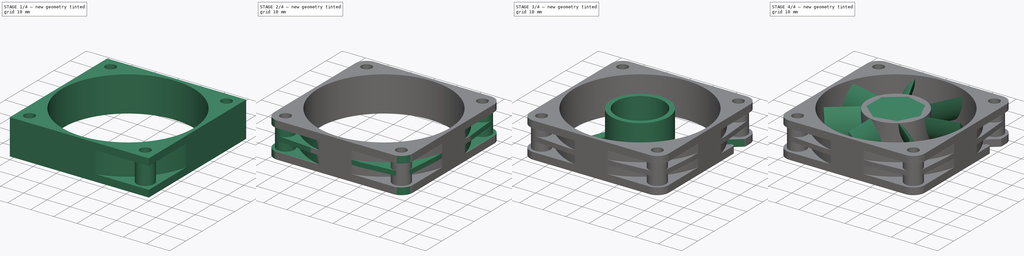
[diagram: build sequence overview — one tinted view per stage of 4, left to right]
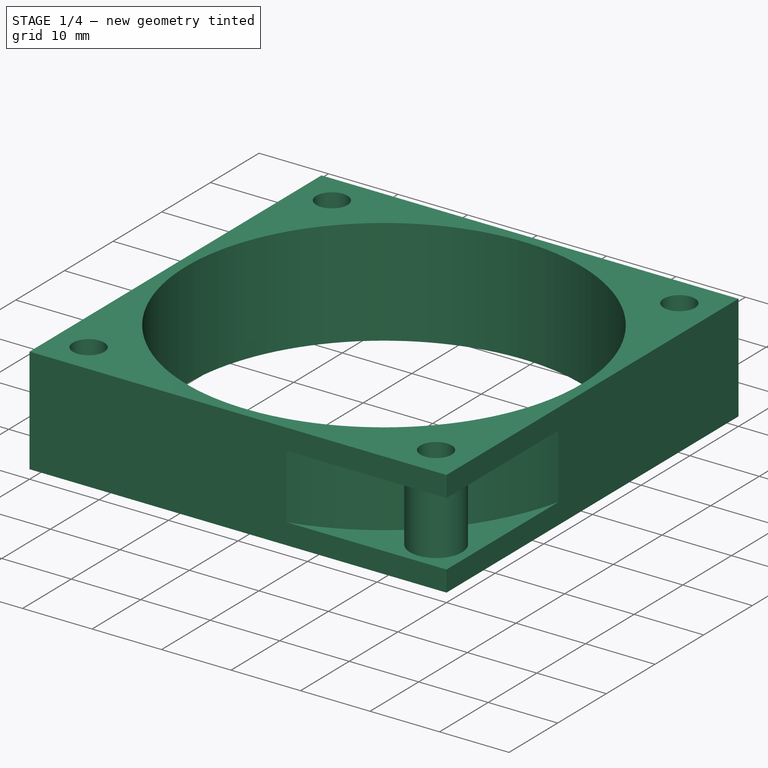
[diagram: stage 1 of 4 — iso view after this stage's code; geometry added in this stage tinted green]
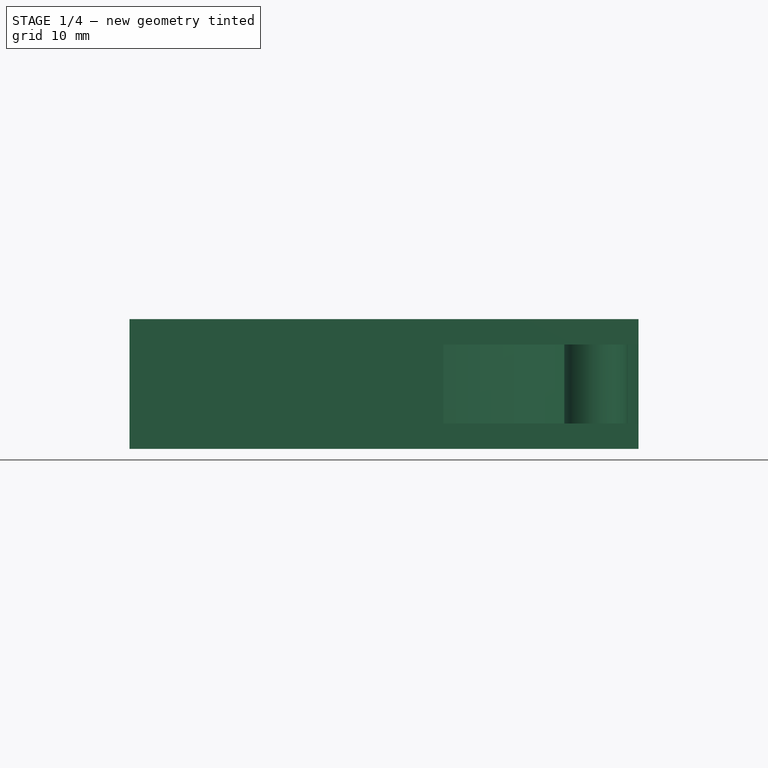
[diagram: stage 1 of 4 — front view after this stage's code; geometry added in this stage tinted green]
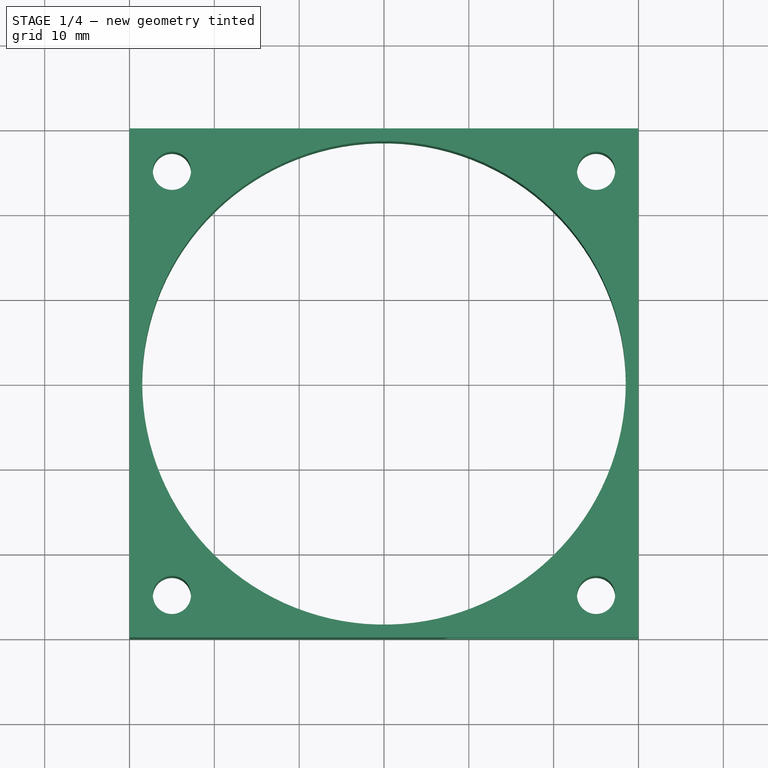
[diagram: stage 1 of 4 — top view after this stage's code; geometry added in this stage tinted green]
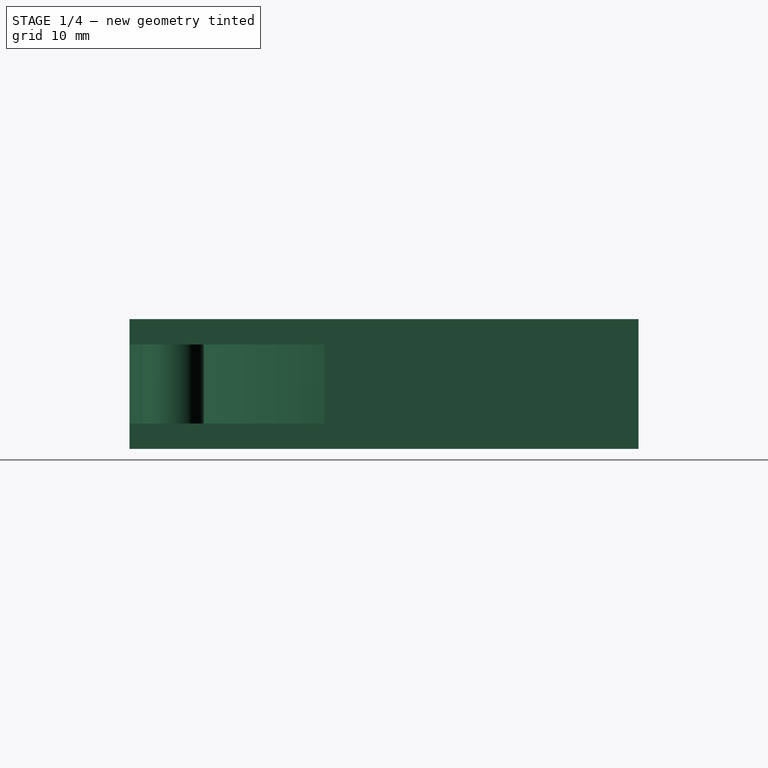
[diagram: stage 1 of 4 — right view after this stage's code; geometry added in this stage tinted green]
FCSTD DOCUMENT  (FreeCAD 1.0R39285 (Git))
Label: CHA6402_Fan
License: All rights reserved
LicenseURL: http://en.wikipedia.org/wiki/All_rights_reserved
objects: Sketcher::SketchObject×9, PartDesign::Pad×7, PartDesign::Plane×4, PartDesign::Pocket×2, PartDesign::Fillet×2, PartDesign::Mirrored×2, PartDesign::Body×2, PartDesign::PolarPattern×1, PartDesign::MultiTransform×1, App::Part×1
note: 65 computed .brp shape members not serialized (recipe doc carries the construction recipe); baked Part::Feature solids carry a one-line shape summary decoded from their .brp

FEATURE [Sketcher::SketchObject] Sketch
  ArcFitTolerance = 1e-06
  AttachmentSupport = -> [XY_Plane]
  FullyConstrained = true
  MakeInternals = true
  MapMode = 5
  sketch-geometry (15):
    g0: LineSegment StartX=-30 StartY=-30 StartZ=0 EndX=30 EndY=-30 EndZ=0
    g1: LineSegment StartX=30 StartY=-30 StartZ=0 EndX=30 EndY=30 EndZ=0
    g2: LineSegment StartX=30 StartY=30 StartZ=0 EndX=-30 EndY=30 EndZ=0
    g3: LineSegment StartX=-30 StartY=30 StartZ=0 EndX=-30 EndY=-30 EndZ=0
    g4: GeomPoint [constr] X=0 Y=0 Z=0
    g5: Circle CenterX=0 CenterY=0 CenterZ=0 NormalX=0 NormalY=0 NormalZ=1 AngleXU=0 Radius=28.5
    g6: Circle CenterX=25 CenterY=25 CenterZ=0 NormalX=0 NormalY=0 NormalZ=1 AngleXU=0 Radius=2.25
    g7: LineSegment [constr] StartX=-25 StartY=-25 StartZ=0 EndX=25 EndY=-25 EndZ=0
    g8: LineSegment [constr] StartX=25 StartY=-25 StartZ=0 EndX=25 EndY=25 EndZ=0
    g9: LineSegment [constr] StartX=25 StartY=25 StartZ=0 EndX=-25 EndY=25 EndZ=0
    g10: LineSegment [constr] StartX=-25 StartY=25 StartZ=0 EndX=-25 EndY=-25 EndZ=0
    g11: GeomPoint [constr] X=0 Y=0 Z=0
    g12: Circle CenterX=25 CenterY=-25 CenterZ=0 NormalX=0 NormalY=0 NormalZ=1 AngleXU=0 Radius=2.25
    g13: Circle CenterX=-25 CenterY=-25 CenterZ=0 NormalX=0 NormalY=0 NormalZ=1 AngleXU=0 Radius=2.25
    g14: Circle CenterX=-25 CenterY=25 CenterZ=0 NormalX=0 NormalY=0 NormalZ=1 AngleXU=0 Radius=2.25
  constraints (38):
    c: Coincident(g0,g1)
    c: Coincident(g1,g2)
    c: Coincident(g2,g3)
    c: Coincident(g3,g0)
    c: Horizontal(g0)
    c: Horizontal(g2)
    c: Vertical(g1)
    c: Vertical(g3)
    c: Symmetric(g2,g0,g4)
    c: Distance(g1,g3) = 60  'fanThickness'
    c: Coincident(g4,g-1)
    c: Equal(g0,g1)
    c: Coincident(g5,g4)
    c: Diameter(g5) = 57  'centerHoleDiam'
    c: Diameter(g6) = 4.5  'mountingHoleDiam'
    c: Coincident(g7,g8)
    c: Coincident(g8,g9)
    c: Coincident(g9,g10)
    c: Coincident(g10,g7)
    c: Horizontal(g7)
    c: Horizontal(g9)
    c: Vertical(g8)
    c: Vertical(g10)
    c: Symmetric(g9,g7,g11)
    c: Distance(g8,g10) = 50
    c: Coincident(g11,g4)
    c: Equal(g7,g8)
    c: Coincident(g6,g8)
    c: Coincident(g12,g7)
    c: Coincident(g13,g7)
    c: Coincident(g14,g9)
    c: Equal(g12,g13)
    c: Equal(g13,g14)
    c: Equal(g14,g6)
    c: DistanceX(g7,g0) = 5  'holeMountXDist'
    c: DistanceY(g0,g7) = 5  'holeMountYDist'
    c: DistanceY(g0,g4) = 30  'centerHoleY'
    c: DistanceX(g4,g0) = 30  'centerHoleX'
FEATURE [PartDesign::Pad] Pad
  Direction = (0,0,1)
  Length = 15.3
  Length2 = 10
  Profile = -> Sketch
  ReferenceAxis = -> Sketch [N_Axis]
  Refine = true
  Suppressed = false
  Type = 0
FEATURE [PartDesign::Plane] DatumPlane
  AttachmentSupport = -> [Pad]
  Length = 66
  MapMode = 45
  Placement = pos=(30,-30,7.65) rot=(0,0,1;0rad)
  ResizeMode = 0
  Width = 66
FEATURE [Sketcher::SketchObject] Sketch001
  ArcFitTolerance = 1e-06
  AttachmentSupport = -> [DatumPlane]
  FullyConstrained = true
  MakeInternals = true
  MapMode = 5
  Placement = pos=(30,-30,7.65) rot=(0,0,1;0rad)
  expr: Constraints[0] = Sketch.Constraints.holeMountYDist
  expr: Constraints[1] = Sketch.Constraints.holeMountXDist
  expr: Constraints[2] = Sketch.Constraints.mountingHoleDiam
  expr: Constraints[4] = Sketch.Constraints.centerHoleY
  expr: Constraints[5] = Sketch.Constraints.centerHoleX
  expr: Constraints[6] = Sketch.Constraints.centerHoleDiam
  sketch-geometry (6):
    g0: Circle CenterX=-5 CenterY=5 CenterZ=0 NormalX=0 NormalY=0 NormalZ=1 AngleXU=0 Radius=2.25
    g1: Circle CenterX=-5 CenterY=5 CenterZ=0 NormalX=0 NormalY=0 NormalZ=1 AngleXU=0 Radius=3.75
    g2: Circle [constr] CenterX=-30 CenterY=30 CenterZ=0 NormalX=0 NormalY=0 NormalZ=1 AngleXU=0 Radius=28.5
    g3: ArcOfCircle CenterX=-30 CenterY=30 CenterZ=0 NormalX=0 NormalY=0 NormalZ=1 AngleXU=0 Radius=30.8058 StartAngle=4.94162 EndAngle=6.05395
    g4: LineSegment StartX=3.6e-15 StartY=23 StartZ=0 EndX=0 EndY=0 EndZ=0
    g5: LineSegment StartX=-23 StartY=0 StartZ=0 EndX=0 EndY=0 EndZ=0
  constraints (16):
    c: DistanceY(g-1,g0) = 5
    c: DistanceX(g0,g-1) = 5
    c: Diameter(g0) = 4.5
    c: Diameter(g1) = 7.5  'holePostDiam'
    c: DistanceY(g-1,g2) = 30
    c: DistanceX(g2,g-1) = 30
    c: Diameter(g2) = 57
    c: PointOnObject(g3,g-1)
    c: PointOnObject(g3,g-2)
    c: Coincident(g3,g2)
    c: Coincident(g4,g3)
    c: Coincident(g4,g-1)
    c: Coincident(g5,g3)
    c: Coincident(g5,g4)
    c: DistanceY(g4,g4) = 23  'pocketCurveDistToPoint'
    c: Coincident(g1,g0)
FEATURE [PartDesign::Pocket] Pocket
  BaseFeature = -> Pad
  Direction = (0,0,-1)
  Length = 9.3
  Length2 = 5
  Midplane = true
  Profile = -> Sketch001 [Edge4,Edge1,Edge5,Edge3]
  ReferenceAxis = -> Sketch001 [N_Axis]
  Refine = true
  Suppressed = false
  Type = 0
  expr: Length = Pad.Length - 3 mm * 2
FEATURE [PartDesign::Pad] Pad001
  BaseFeature = -> Pocket
  Direction = (0,0,1)
  Length = 9.3
  Length2 = 10
  Midplane = true
  Profile = -> Sketch001 [Edge2,Edge1]
  ReferenceAxis = -> Sketch001 [N_Axis]
  Refine = true
  Suppressed = false
  Type = 0
  expr: Length = Pocket.Length
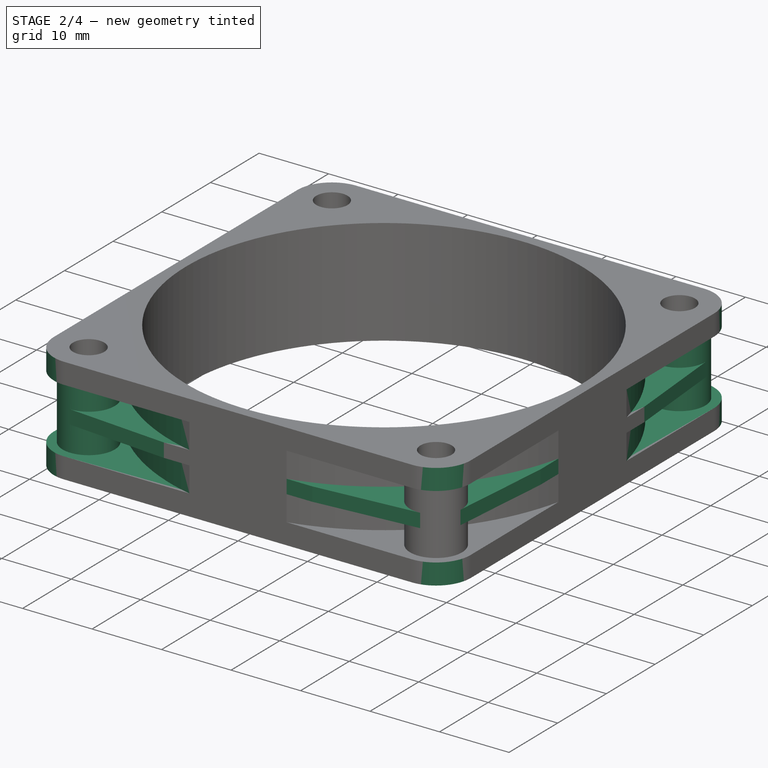
[diagram: stage 2 of 4 — iso view after this stage's code; geometry added in this stage tinted green]
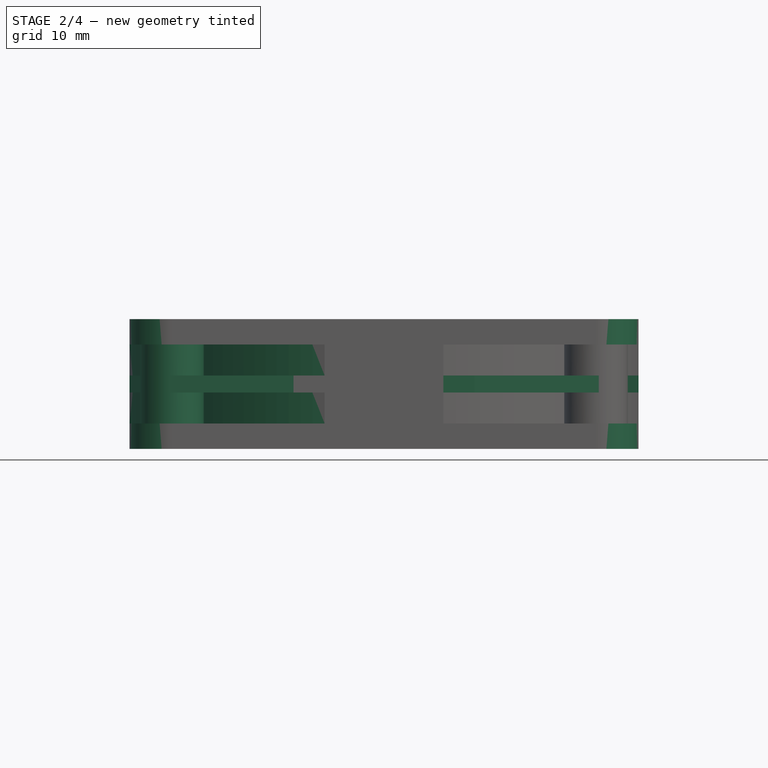
[diagram: stage 2 of 4 — front view after this stage's code; geometry added in this stage tinted green]
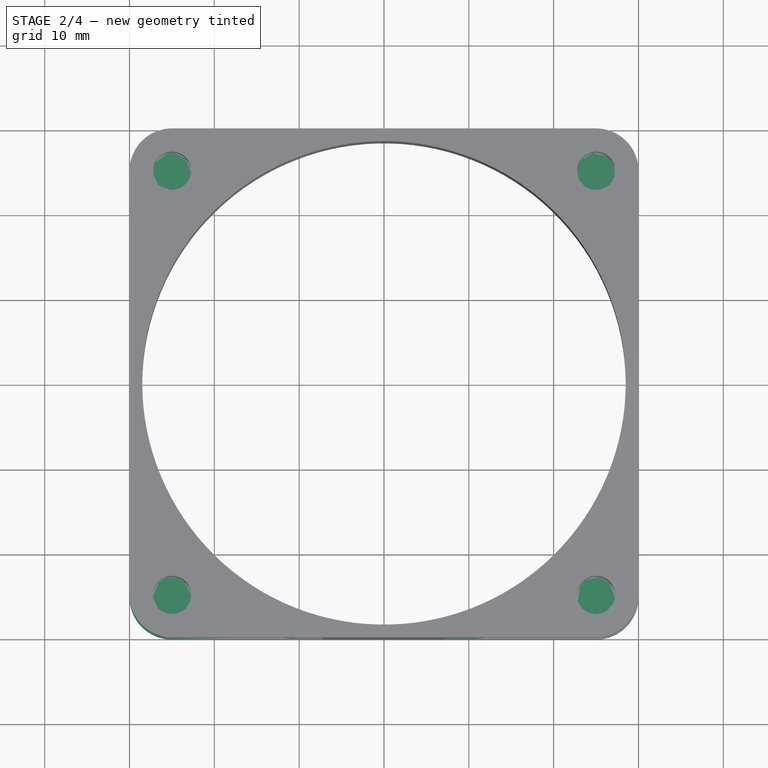
[diagram: stage 2 of 4 — top view after this stage's code; geometry added in this stage tinted green]
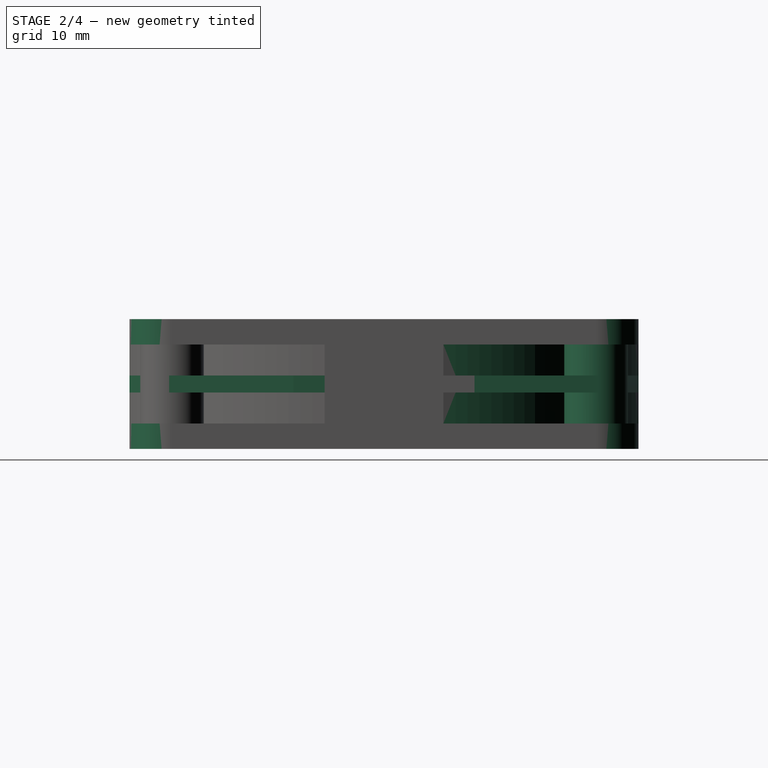
[diagram: stage 2 of 4 — right view after this stage's code; geometry added in this stage tinted green]
FEATURE [PartDesign::Fillet] Fillet
  Base = -> Pad001 [Edge2,Edge6]
  BaseFeature = -> Pad001
  Radius = 5
  Refine = true
  SupportTransform = false
  Suppressed = false
  UseAllEdges = false
FEATURE [PartDesign::Body] Body001  label="CHA6402RL-15B Fan Blades"
  AllowCompound = true
  Group = -> [DatumPlane001,Sketch003,Pad003,Sketch004,Pad004,DatumPlane002,Sketch005,DatumPlane003,Sketch006,Pad005,PolarPattern]
  Origin = -> Origin001
  Tip = -> PolarPattern
FEATURE [Sketcher::SketchObject] Sketch008
  ArcFitTolerance = 1e-06
  AttachmentSupport = -> [DatumPlane]
  FullyConstrained = true
  MakeInternals = true
  MapMode = 5
  Placement = pos=(30,-30,7.65) rot=(0,0,1;0rad)
  expr: Constraints[0] = Sketch.Constraints.mountingHoleDiam
  expr: Constraints[11] = Sketch.Constraints.centerHoleY
  expr: Constraints[14] = Sketch001.Constraints.holePostDiam
  expr: Constraints[1] = Sketch.Constraints.holeMountYDist
  expr: Constraints[2] = Sketch.Constraints.holeMountXDist
  expr: Constraints[5] = Sketch001.Constraints.pocketCurveDistToPoint
  sketch-geometry (10):
    g0: Circle [constr] CenterX=-5 CenterY=5 CenterZ=0 NormalX=0 NormalY=0 NormalZ=1 AngleXU=0 Radius=2.25
    g1: LineSegment [constr] StartX=0 StartY=0 StartZ=0 EndX=3.6e-15 EndY=23 EndZ=0
    g2: LineSegment [constr] StartX=0 StartY=0 StartZ=0 EndX=-23 EndY=0 EndZ=0
    g3: ArcOfCircle CenterX=-30 CenterY=30 CenterZ=0 NormalX=0 NormalY=0 NormalZ=1 AngleXU=0 Radius=30.8058 StartAngle=4.94162 EndAngle=6.05395
    g4: GeomPoint [constr] X=-30 Y=30 Z=0
    g5: ArcOfCircle CenterX=-5 CenterY=5 CenterZ=0 NormalX=0 NormalY=0 NormalZ=1 AngleXU=0 Radius=3.75 StartAngle=4.79843 EndAngle=6.19715
    g6: LineSegment StartX=-1.26387 StartY=4.67775 StartZ=0 EndX=0 EndY=19.331 EndZ=0
    g7: LineSegment StartX=0 StartY=19.331 StartZ=0 EndX=3.6e-15 EndY=23 EndZ=0
    g8: LineSegment StartX=-4.67775 StartY=1.26387 StartZ=0 EndX=-19.331 EndY=0 EndZ=0
    g9: LineSegment StartX=-19.331 StartY=0 StartZ=0 EndX=-23 EndY=0 EndZ=0
  constraints (25):
    c: Diameter(g0) = 4.5
    c: DistanceY(g-1,g0) = 5
    c: DistanceX(g0,g-1) = 5
    c: Coincident(g1,g-1)
    c: PointOnObject(g1,g-2)
    c: DistanceY(g1,g1) = 23
    c: Coincident(g2,g1)
    c: PointOnObject(g2,g-1)
    c: Equal(g2,g1)
    c: Coincident(g3,g2)
    c: Coincident(g3,g1)
    c: DistanceY(g1,g4) = 30
    c: Coincident(g3,g4)
    c: Coincident(g5,g0)
    c: Diameter(g5) = 7.5
    c: PointOnObject(g6,g1)
    c: Tangent(g6,g3)
    c: Coincident(g7,g6)
    c: Coincident(g7,g1)
    c: Tangent(g8,g3)
    c: PointOnObject(g8,g2)
    c: Coincident(g9,g8)
    c: Coincident(g9,g2)
    c: Tangent(g5,g6) = -1.5708
    c: Tangent(g5,g8) = 1.5708
FEATURE [PartDesign::Pad] Pad006
  BaseFeature = -> Fillet
  Direction = (0,0,1)
  Length = 2
  Length2 = 10
  Midplane = true
  Profile = -> Sketch008
  ReferenceAxis = -> Sketch008 [N_Axis]
  Refine = true
  Suppressed = false
  Type = 0
FEATURE [PartDesign::MultiTransform] MultiTransform
  BaseFeature = -> Pad006
  Originals = -> [Pocket,Pad001,Fillet,Pad006]
  Refine = true
  Suppressed = false
  TransformMode = 0
  Transformations = -> [Mirrored,Mirrored001]
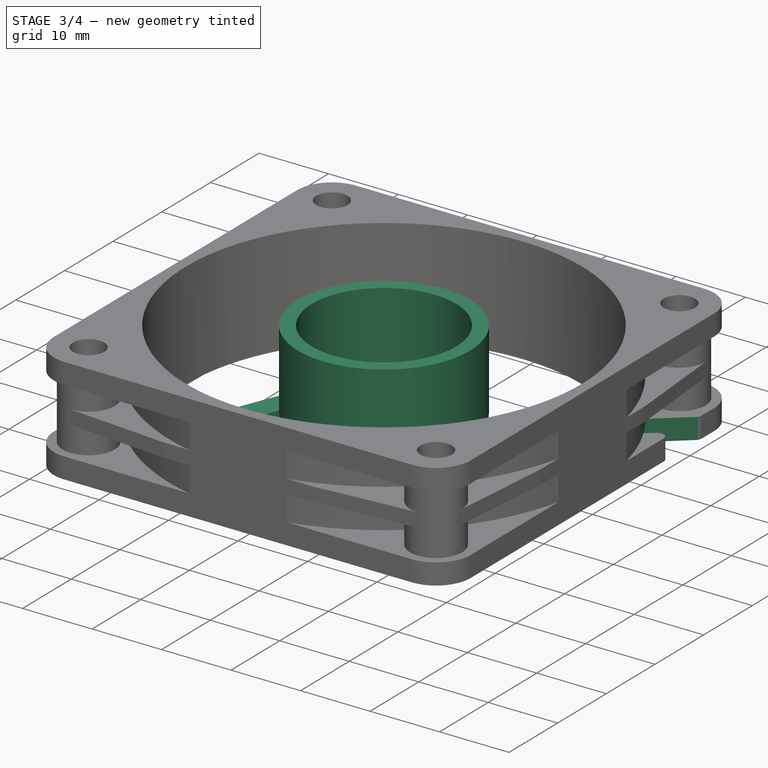
[diagram: stage 3 of 4 — iso view after this stage's code; geometry added in this stage tinted green]
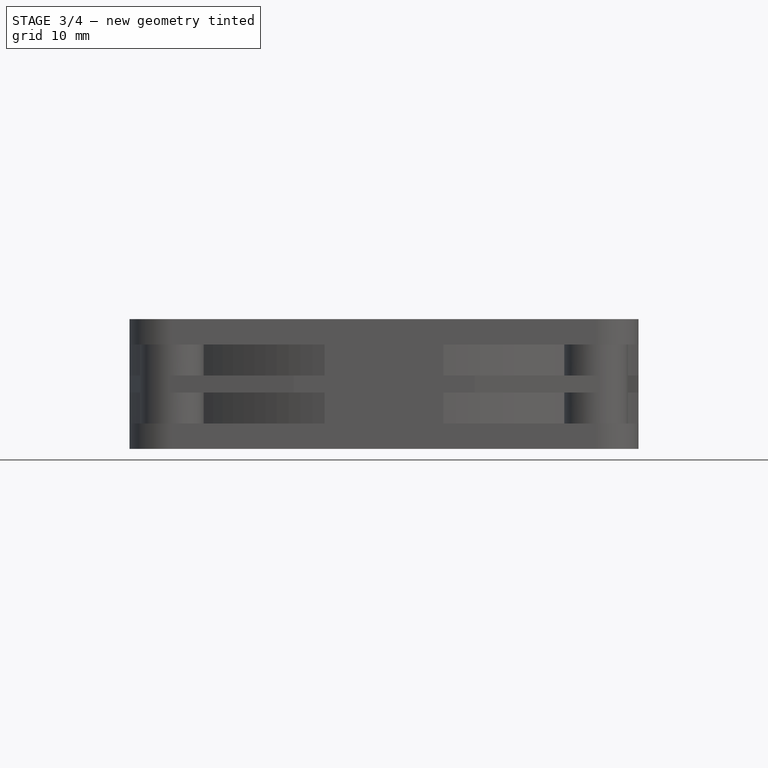
[diagram: stage 3 of 4 — front view after this stage's code; geometry added in this stage tinted green]
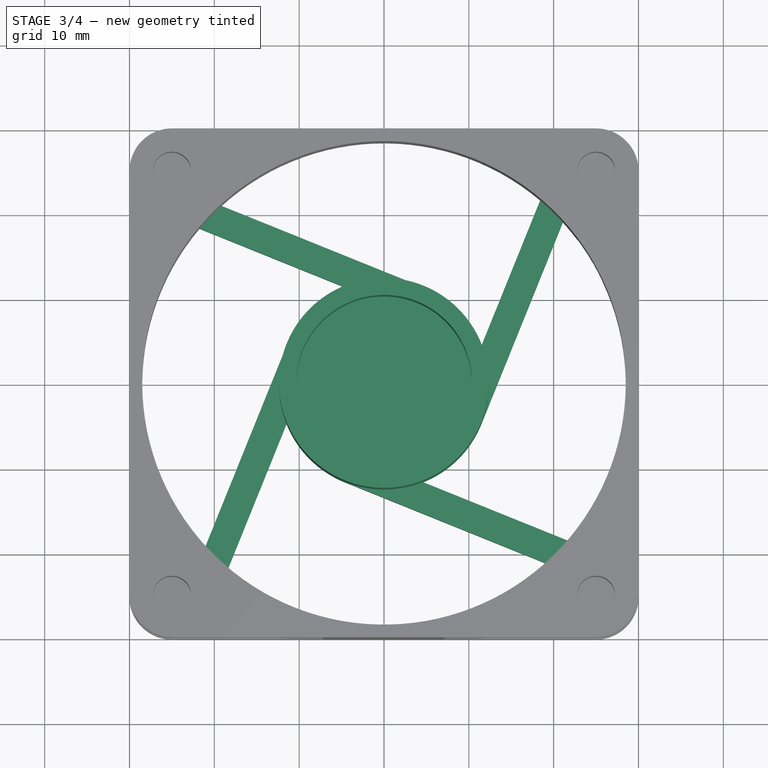
[diagram: stage 3 of 4 — top view after this stage's code; geometry added in this stage tinted green]
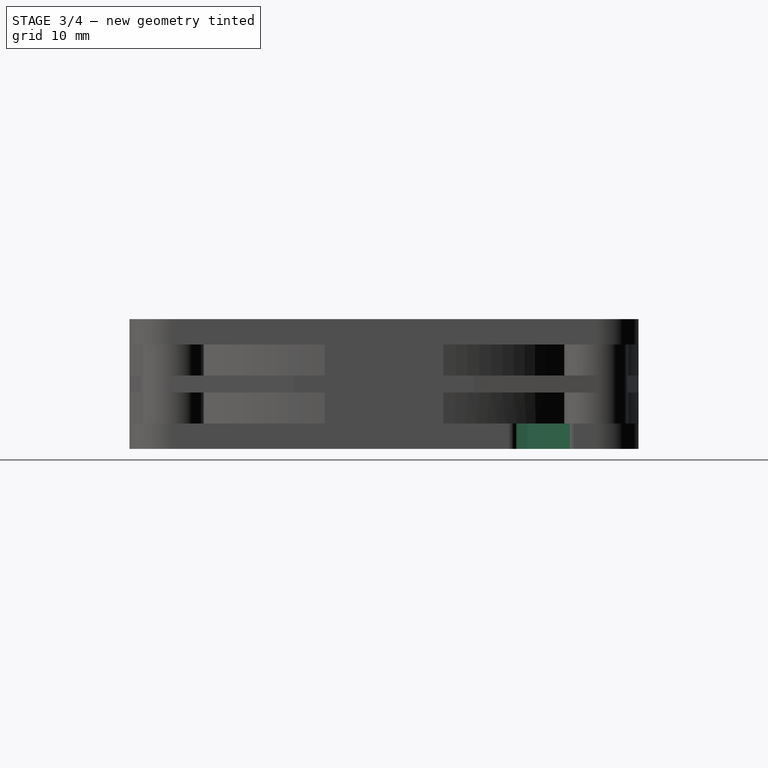
[diagram: stage 3 of 4 — right view after this stage's code; geometry added in this stage tinted green]
FEATURE [PartDesign::Mirrored] Mirrored
  MirrorPlane = -> XZ_Plane
  Refine = true
  Suppressed = false
  TransformMode = 0
FEATURE [PartDesign::Mirrored] Mirrored001
  MirrorPlane = -> YZ_Plane
  Refine = true
  Suppressed = false
  TransformMode = 0
FEATURE [Sketcher::SketchObject] Sketch002
  ArcFitTolerance = 1e-06
  AttachmentSupport = -> [XY_Plane]
  FullyConstrained = true
  MakeInternals = true
  MapMode = 5
  expr: Constraints[18] = .Constraints.innerCenterCircle_supportLen
  expr: Constraints[19] = .Constraints.innerCenterCircle_supportAng
  expr: Constraints[1] = Sketch.Constraints.centerHoleDiam
  expr: Constraints[29] = .Constraints.innerCenterCircle_supportAng
  expr: Constraints[36] = .Constraints.innerCenterCircle_supportAng
  sketch-geometry (17):
    g0: Circle [constr] CenterX=0 CenterY=0 CenterZ=0 NormalX=0 NormalY=0 NormalZ=1 AngleXU=0 Radius=28.5
    g1: ArcOfCircle CenterX=0 CenterY=0 CenterZ=0 NormalX=0 NormalY=0 NormalZ=1 AngleXU=0 Radius=12.375 StartAngle=5.09366 EndAngle=5.89921
    g2: LineSegment StartX=11.4739 StartY=-4.63576 StartZ=0 EndX=21.0912 EndY=19.168 EndZ=0
    g3: LineSegment StartX=11.4864 StartY=4.60477 StartZ=0 EndX=18.4144 EndY=21.7522 EndZ=0
    g4: ArcOfCircle CenterX=0 CenterY=0 CenterZ=0 NormalX=0 NormalY=0 NormalZ=1 AngleXU=0 Radius=28.5 StartAngle=0.737662 EndAngle=0.868308
    g5: LineSegment StartX=4.63576 StartY=11.4739 StartZ=0 EndX=-19.168 EndY=21.0912 EndZ=0
    g6: LineSegment StartX=-4.60477 StartY=11.4864 StartZ=0 EndX=-21.7522 EndY=18.4144 EndZ=0
    g7: ArcOfCircle CenterX=0 CenterY=0 CenterZ=0 NormalX=0 NormalY=0 NormalZ=1 AngleXU=0 Radius=28.5 StartAngle=2.30846 EndAngle=2.4391
    g8: LineSegment StartX=-11.4739 StartY=4.63576 StartZ=0 EndX=-21.0912 EndY=-19.168 EndZ=0
    g9: LineSegment StartX=-11.4864 StartY=-4.60477 StartZ=0 EndX=-18.4144 EndY=-21.7522 EndZ=0
    g10: ArcOfCircle CenterX=0 CenterY=0 CenterZ=0 NormalX=0 NormalY=0 NormalZ=1 AngleXU=0 Radius=28.5 StartAngle=3.87925 EndAngle=4.0099
    g11: LineSegment StartX=-4.63576 StartY=-11.4739 StartZ=0 EndX=19.168 EndY=-21.0912 EndZ=0
    g12: LineSegment StartX=4.60477 StartY=-11.4864 StartZ=0 EndX=21.7522 EndY=-18.4144 EndZ=0
    g13: ArcOfCircle CenterX=0 CenterY=0 CenterZ=0 NormalX=0 NormalY=0 NormalZ=1 AngleXU=0 Radius=28.5 StartAngle=5.45005 EndAngle=5.5807
    g14: ArcOfCircle CenterX=0 CenterY=0 CenterZ=0 NormalX=0 NormalY=0 NormalZ=1 AngleXU=0 Radius=12.375 StartAngle=0.381273 EndAngle=1.18682
    g15: ArcOfCircle CenterX=0 CenterY=0 CenterZ=0 NormalX=0 NormalY=0 NormalZ=1 AngleXU=0 Radius=12.375 StartAngle=1.95207 EndAngle=2.75762
    g16: ArcOfCircle CenterX=0 CenterY=0 CenterZ=0 NormalX=0 NormalY=0 NormalZ=1 AngleXU=0 Radius=12.375 StartAngle=3.52287 EndAngle=4.32842
  constraints (49):
    c: Coincident(g0,g-1)
    c: Diameter(g0) = 57
    c: Diameter(g1) = 24.75  'innerCoreDiam'
    c: Coincident(g1,g0)
    c: PointOnObject(g2,g0)
    c: PointOnObject(g3,g14)
    c: Parallel(g3,g2)
    c: Distance(g2,g3) = 3.45  'innerCenterCircle_supportLen'
    c: Coincident(g4,g2)
    c: Coincident(g4,g3)
    c: Coincident(g4,g0)
    c: Angle(g3,g-2) = 0.383972  'innerCenterCircle_supportAng'
    c: PointOnObject(g5,g0)
    c: PointOnObject(g6,g15)
    c: Coincident(g7,g6)
    c: Coincident(g7,g5)
    c: Coincident(g7,g0)
    c: Parallel(g5,g6)
    c: Distance(g5,g6) = 3.45
    c: Angle(g6,g-1) = 0.383972
    c: Tangent(g5,g1) = -1.5708
    c: PointOnObject(g8,g0)
    c: PointOnObject(g9,g16)
    c: Coincident(g10,g8)
    c: Coincident(g10,g9)
    c: Coincident(g10,g0)
    c: Parallel(g8,g9)
    c: Tangent(g8,g1) = -1.5708
    c: Equal(g9,g3)
    c: Angle(g9,g-2) = 0.383972
    c: PointOnObject(g11,g0)
    c: Parallel(g11,g12)
    c: Coincident(g13,g11)
    c: Coincident(g13,g12)
    c: Coincident(g13,g0)
    c: Equal(g12,g3)
    c: Angle(g12,g-1) = 0.383972
    c: Coincident(g1,g12)
    c: Tangent(g1,g2) = -1.5708
    c: PointOnObject(g14,g3)
    c: Coincident(g1,g14)
    c: PointOnObject(g15,g6)
    c: Coincident(g14,g15)
    c: Equal(g15,g16)
    c: PointOnObject(g16,g9)
    c: Coincident(g15,g16)
    c: Coincident(g8,g15)
    c: Tangent(g16,g11) = -1.5708
    c: Coincident(g14,g5)
FEATURE [PartDesign::Plane] DatumPlane001
  AttachmentOffset = pos=(0,0,4) rot=(0,0,1;0rad)
  AttachmentSupport = -> [XY_Plane001]
  Length = 60
  MapMode = 5
  Placement = pos=(0,0,4) rot=(0,0,1;0rad)
  ResizeMode = 0
  Width = 60
  expr: .AttachmentOffset.Base.z = 4
FEATURE [Sketcher::SketchObject] Sketch003
  ArcFitTolerance = 1e-06
  AttachmentSupport = -> [DatumPlane001]
  FullyConstrained = true
  MakeInternals = true
  MapMode = 5
  Placement = pos=(0,0,4) rot=(0,0,1;0rad)
  expr: Constraints[1] = Sketch002.Constraints.innerCoreDiam
  sketch-geometry (2):
    g0: Circle CenterX=0 CenterY=0 CenterZ=0 NormalX=0 NormalY=0 NormalZ=1 AngleXU=0 Radius=12.375
    g1: Circle CenterX=0 CenterY=0 CenterZ=0 NormalX=0 NormalY=0 NormalZ=1 AngleXU=0 Radius=10.375
  constraints (4):
    c: Coincident(g0,g-1)
    c: Diameter(g0) = 24.75
    c: Coincident(g1,g0)
    c: Distance(g1,g0) = 2
FEATURE [PartDesign::Pad] Pad003
  Direction = (0,0,1)
  Length = 11.3
  Length2 = 10
  Placement = pos=(0,0,4) rot=(0,0,1;0rad)
  Profile = -> Sketch003
  ReferenceAxis = -> Sketch003 [N_Axis]
  Refine = true
  Suppressed = false
  Type = 0
  expr: Length = Pad.Length - DatumPlane001.Placement.Base.z
FEATURE [PartDesign::Pad] Pad002
  BaseFeature = -> MultiTransform
  Direction = (0,0,1)
  Length = 3
  Length2 = 10
  Profile = -> Sketch002
  ReferenceAxis = -> Sketch002 [N_Axis]
  Refine = true
  Suppressed = false
  Type = 0
FEATURE [Sketcher::SketchObject] Sketch007
  ArcFitTolerance = 1e-06
  AttachmentSupport = -> [Pad002]
  FullyConstrained = true
  MakeInternals = true
  MapMode = 5
  Placement = pos=(0,0,4e-16) rot=(1,0,0;3.14159rad)
  expr: Constraints[10] = Sketch.Constraints.fanThickness
  expr: Constraints[13] = Sketch.Constraints.centerHoleDiam
  sketch-geometry (10):
    g0: LineSegment [constr] StartX=-30 StartY=-30 StartZ=0 EndX=30 EndY=-30 EndZ=0
    g1: LineSegment [constr] StartX=30 StartY=-30 StartZ=0 EndX=30 EndY=30 EndZ=0
    g2: LineSegment [constr] StartX=30 StartY=30 StartZ=0 EndX=-30 EndY=30 EndZ=0
    g3: LineSegment [constr] StartX=-30 StartY=30 StartZ=0 EndX=-30 EndY=-30 EndZ=0
    g4: GeomPoint [constr] X=0 Y=0 Z=0
    g5: Circle [constr] CenterX=0 CenterY=0 CenterZ=0 NormalX=0 NormalY=0 NormalZ=1 AngleXU=0 Radius=28.5
    g6: LineSegment StartX=30 StartY=-22 StartZ=0 EndX=23.3151 EndY=-16.3907 EndZ=0
    g7: LineSegment StartX=30 StartY=-16.7784 StartZ=0 EndX=25.4028 EndY=-12.9209 EndZ=0
    g8: LineSegment StartX=30 StartY=-22 StartZ=0 EndX=30 EndY=-16.7784 EndZ=0
    g9: ArcOfCircle CenterX=0 CenterY=0 CenterZ=0 NormalX=0 NormalY=0 NormalZ=1 AngleXU=0 Radius=28.5 StartAngle=5.67044 EndAngle=5.81265
  constraints (26):
    c: Coincident(g0,g1)
    c: Coincident(g1,g2)
    c: Coincident(g2,g3)
    c: Coincident(g3,g0)
    c: Horizontal(g0)
    c: Horizontal(g2)
    c: Vertical(g1)
    c: Vertical(g3)
    c: Symmetric(g2,g0,g4)
    c: Coincident(g4,g-1)
    c: DistanceY(g1,g1) = 60
    c: Equal(g1,g0)
    c: Coincident(g5,g4)
    c: Diameter(g5) = 57
    c: PointOnObject(g6,g1)
    c: PointOnObject(g6,g5)
    c: PointOnObject(g7,g1)
    c: Coincident(g8,g6)
    c: Coincident(g8,g7)
    c: Coincident(g9,g6)
    c: Coincident(g9,g7)
    c: Coincident(g9,g4)
    c: Parallel(g6,g7)
    c: Distance(g7,g6) = 4
    c: DistanceY(g0,g6) = 8
    c: Angle(g6,g0) = 0.698132
FEATURE [PartDesign::Pocket] Pocket001
  BaseFeature = -> Pad002
  Direction = (0,0,1)
  Length = 0
  Length2 = 5
  Profile = -> Sketch007
  ReferenceAxis = -> Sketch007 [N_Axis]
  Refine = true
  Suppressed = false
  Type = 3
  UpToFace = -> Pad002 [Face39]
FEATURE [PartDesign::Fillet] Fillet001
  Base = -> Pocket001 [Edge225,Edge75,Edge108,Edge106]
  BaseFeature = -> Pocket001
  Radius = 1
  Refine = true
  SupportTransform = false
  Suppressed = false
  UseAllEdges = false
FEATURE [PartDesign::Body] Body  label="CHA6402RL-15B Body"
  AllowCompound = true
  Group = -> [Sketch,Pad,DatumPlane,Sketch001,Pocket,Pad001,Fillet,Sketch008,Pad006,MultiTransform,Mirrored,Mirrored001,Sketch002,Pad002,Sketch007,Pocket001,Fillet001]
  Origin = -> Origin
  Tip = -> Fillet001
FEATURE [App::Part] Part  label="CHA6402RL-15B Fan"
  Group = -> [Body,Body001]
  Origin = -> Origin002
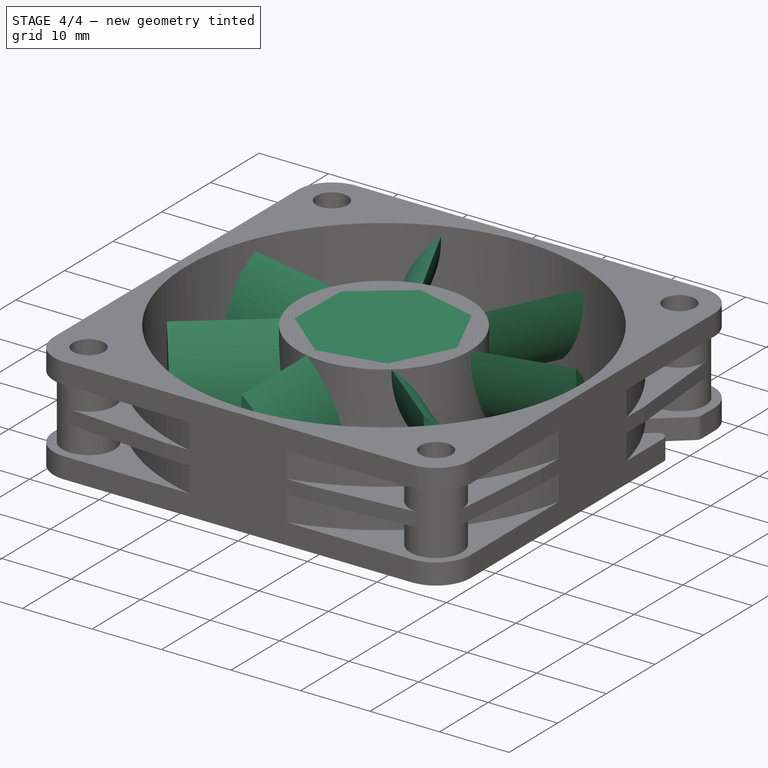
[diagram: stage 4 of 4 — iso view after this stage's code; geometry added in this stage tinted green]
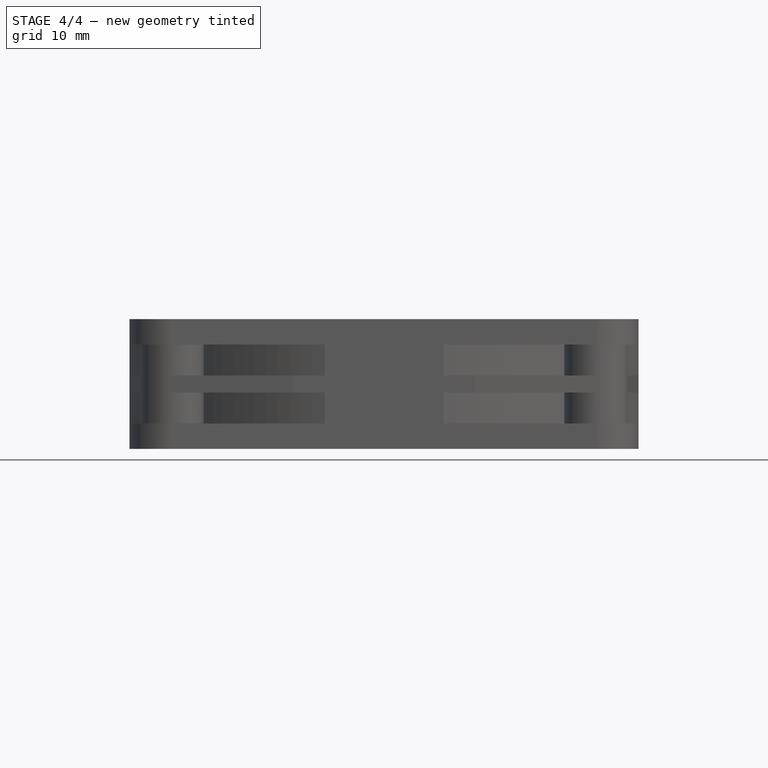
[diagram: stage 4 of 4 — front view after this stage's code; geometry added in this stage tinted green]
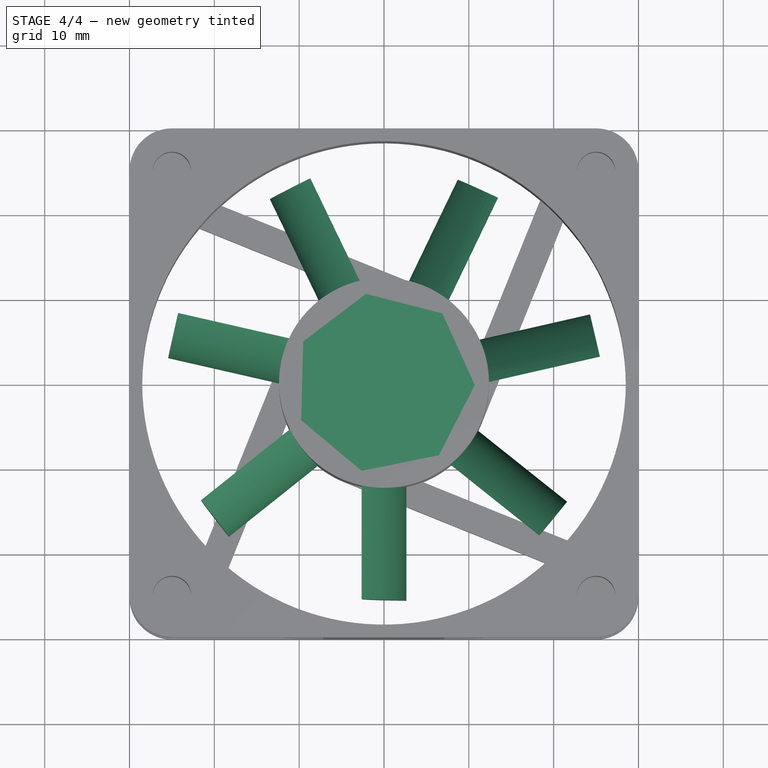
[diagram: stage 4 of 4 — top view after this stage's code; geometry added in this stage tinted green]
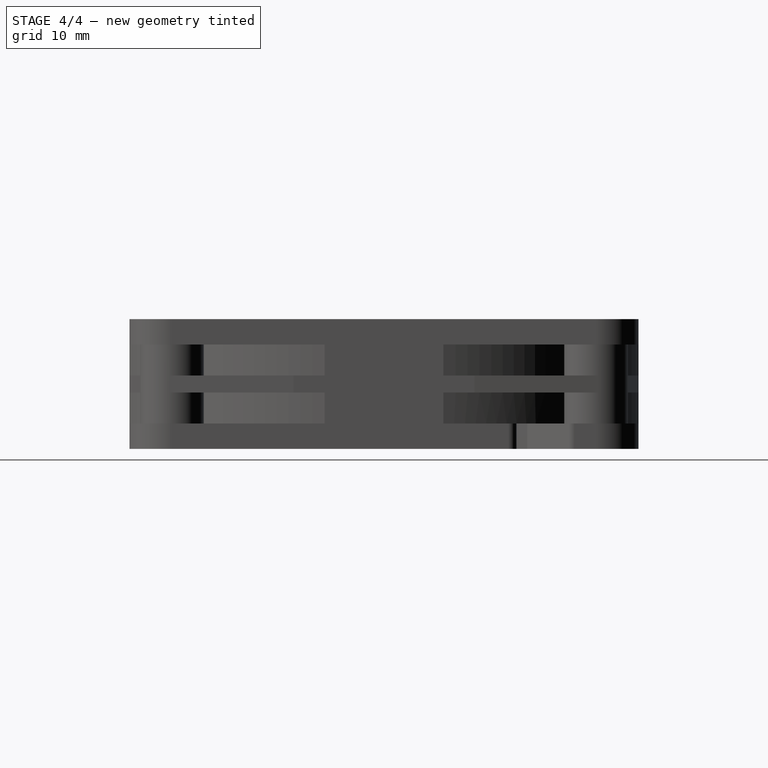
[diagram: stage 4 of 4 — right view after this stage's code; geometry added in this stage tinted green]
FEATURE [Sketcher::SketchObject] Sketch004
  ArcFitTolerance = 1e-06
  AttachmentSupport = -> [Pad003]
  FullyConstrained = true
  MakeInternals = true
  MapMode = 5
  Placement = pos=(0,0,15.3) rot=(0,0,1;0rad)
  expr: Constraints[1] = Sketch002.Constraints.innerCoreDiam
  sketch-geometry (1):
    g0: Circle CenterX=0 CenterY=0 CenterZ=0 NormalX=0 NormalY=0 NormalZ=1 AngleXU=0 Radius=12.375
  constraints (2):
    c: Coincident(g0,g-1)
    c: Diameter(g0) = 24.75
FEATURE [PartDesign::Pad] Pad004
  BaseFeature = -> Pad003
  Direction = (0,0,1)
  Length = 2
  Length2 = 10
  Placement = pos=(0,0,4) rot=(0,0,1;0rad)
  Profile = -> Sketch004
  ReferenceAxis = -> Sketch004 [N_Axis]
  Refine = true
  Reversed = true
  Suppressed = false
  Type = 0
FEATURE [PartDesign::Plane] DatumPlane002
  AttachmentOffset = pos=(0,0,10.375) rot=(0,0,1;0rad)
  AttachmentSupport = -> [XZ_Plane001]
  Length = 60
  MapMode = 5
  Placement = pos=(0,-10.375,2.3e-15) rot=(1,0,0;1.5708rad)
  ResizeMode = 0
  Width = 60
  expr: .AttachmentOffset.Base.z = Sketch002.Constraints.innerCoreDiam / 2 - 2 mm
FEATURE [Sketcher::SketchObject] Sketch005
  ArcFitTolerance = 1e-06
  AttachmentSupport = -> [DatumPlane002]
  FullyConstrained = true
  MakeInternals = true
  MapMode = 5
  Placement = pos=(0,-10.375,2.3e-15) rot=(1,0,0;1.5708rad)
  expr: Constraints[2] = DatumPlane001.Placement.Base.z
  expr: Constraints[5] = Pad003.Length
  sketch-geometry (6):
    g0: LineSegment [constr] StartX=0 StartY=0 StartZ=0 EndX=0 EndY=4 EndZ=0
    g1: LineSegment [constr] StartX=0 StartY=4 StartZ=0 EndX=0 EndY=15.3 EndZ=0
    g2: GeomPoint X=0 Y=9.65 Z=0
    g3: LineSegment [constr] StartX=2.63464 StartY=4 StartZ=0 EndX=-2.63464 EndY=15.3 EndZ=0
    g4: ArcOfCircle CenterX=-11.0611 CenterY=4.49211 CenterZ=0 NormalX=0 NormalY=0 NormalZ=1 AngleXU=0 Radius=13.7046 StartAngle=6.24727 EndAngle=7.19177
    g5: ArcOfCircle CenterX=11.0611 CenterY=14.8079 CenterZ=0 NormalX=0 NormalY=0 NormalZ=1 AngleXU=0 Radius=13.7046 StartAngle=3.10568 EndAngle=4.05017
  constraints (17):
    c: Coincident(g0,g-1)
    c: PointOnObject(g0,g-2)
    c: DistanceY(g0,g0) = 4
    c: Coincident(g1,g0)
    c: PointOnObject(g1,g-2)
    c: DistanceY(g1,g1) = 11.3
    c: Symmetric(g0,g1,g2)
    c: Horizontal(g3,g1)
    c: Horizontal(g0,g3)
    c: PointOnObject(g2,g3)
    c: Angle(g1,g3) = 0.436332
    c: Coincident(g4,g3)
    c: Coincident(g4,g3)
    c: Coincident(g5,g3)
    c: Coincident(g5,g3)
    c: Equal(g5,g4)
    c: Distance(g5,g4) = -3  'bladeThickness'
FEATURE [PartDesign::Plane] DatumPlane003
  AttachmentOffset = pos=(0,0,25.5) rot=(0,0,1;0rad)
  AttachmentSupport = -> [XZ_Plane001]
  Length = 60
  MapMode = 5
  Placement = pos=(0,-25.5,5.7e-15) rot=(1,0,0;1.5708rad)
  ResizeMode = 0
  Width = 60
  expr: .AttachmentOffset.Base.z = Sketch.Constraints.centerHoleDiam / 2 - 3 mm
FEATURE [Sketcher::SketchObject] Sketch006
  ArcFitTolerance = 1e-06
  AttachmentSupport = -> [DatumPlane003]
  FullyConstrained = true
  MakeInternals = true
  MapMode = 5
  Placement = pos=(0,-25.5,5.7e-15) rot=(1,0,0;1.5708rad)
  expr: Constraints[16] = -Sketch005.Constraints.bladeThickness / 2
  expr: Constraints[2] = Sketch005.Constraints[2]
  expr: Constraints[5] = Sketch005.Constraints[5]
  sketch-geometry (6):
    g0: LineSegment [constr] StartX=0 StartY=0 StartZ=0 EndX=0 EndY=4 EndZ=0
    g1: LineSegment [constr] StartX=0 StartY=4 StartZ=0 EndX=0 EndY=15.3 EndZ=0
    g2: GeomPoint X=0 Y=9.65 Z=0
    g3: LineSegment [constr] StartX=6.73341 StartY=4 StartZ=0 EndX=-6.73341 EndY=15.3 EndZ=0
    g4: ArcOfCircle CenterX=-16.0721 CenterY=-9.50399 CenterZ=0 NormalX=0 NormalY=0 NormalZ=1 AngleXU=0 Radius=26.5038 StartAngle=0.534618 EndAngle=1.21071
    g5: ArcOfCircle CenterX=16.0721 CenterY=28.804 CenterZ=0 NormalX=0 NormalY=0 NormalZ=1 AngleXU=0 Radius=26.5038 StartAngle=3.67621 EndAngle=4.3523
  constraints (17):
    c: Coincident(g0,g-1)
    c: PointOnObject(g0,g-2)
    c: DistanceY(g0,g0) = 4
    c: Coincident(g1,g0)
    c: PointOnObject(g1,g-2)
    c: DistanceY(g1,g1) = 11.3
    c: Symmetric(g0,g1,g2)
    c: Horizontal(g3,g1)
    c: Horizontal(g0,g3)
    c: PointOnObject(g2,g3)
    c: Coincident(g4,g3)
    c: Coincident(g4,g3)
    c: Coincident(g5,g3)
    c: Coincident(g5,g3)
    c: Equal(g5,g4)
    c: Angle(g1,g3) = 0.872665
    c: Distance(g2,g4) = 1.5
FEATURE [PartDesign::Pad] Pad005
  BaseFeature = -> Pad004
  Direction = (0,-1,2e-16)
  Length = 10
  Length2 = 10
  Placement = pos=(0,0,4) rot=(0,0,1;0rad)
  Profile = -> Sketch005
  ReferenceAxis = -> Sketch005 [N_Axis]
  Refine = true
  Suppressed = false
  Type = 3
  UpToFace = -> DatumPlane003 [Plane]
FEATURE [PartDesign::PolarPattern] PolarPattern
  Angle = 360
  Axis = -> Z_Axis001
  BaseFeature = -> Pad005
  Mode = 0
  Occurrences = 7
  Offset = 120
  Originals = -> [Pad005]
  Placement = pos=(0,0,4) rot=(0,0,1;0rad)
  Refine = true
  Suppressed = false
  TransformMode = 0
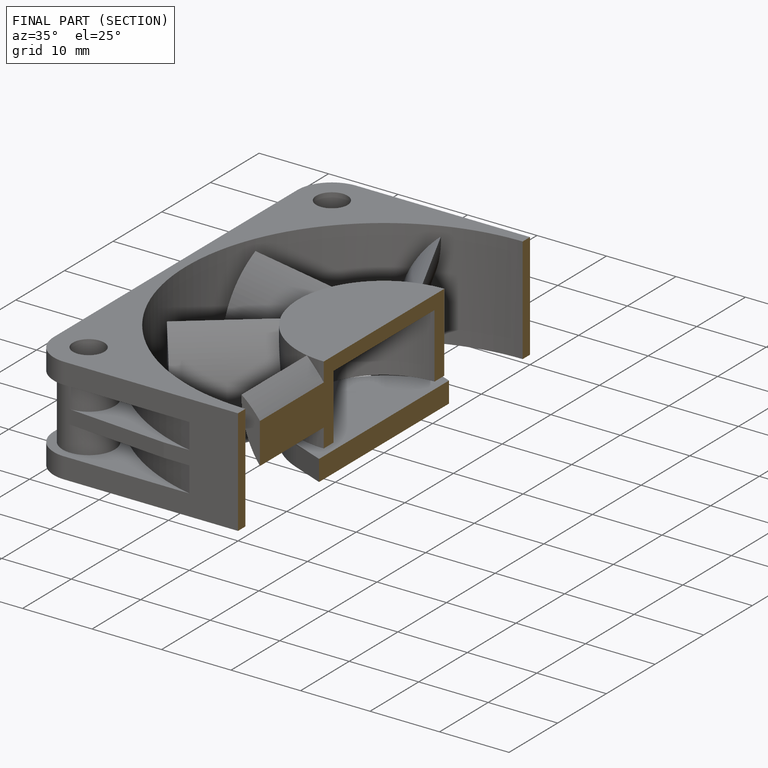
[diagram: finished part — half-section view (interior)]
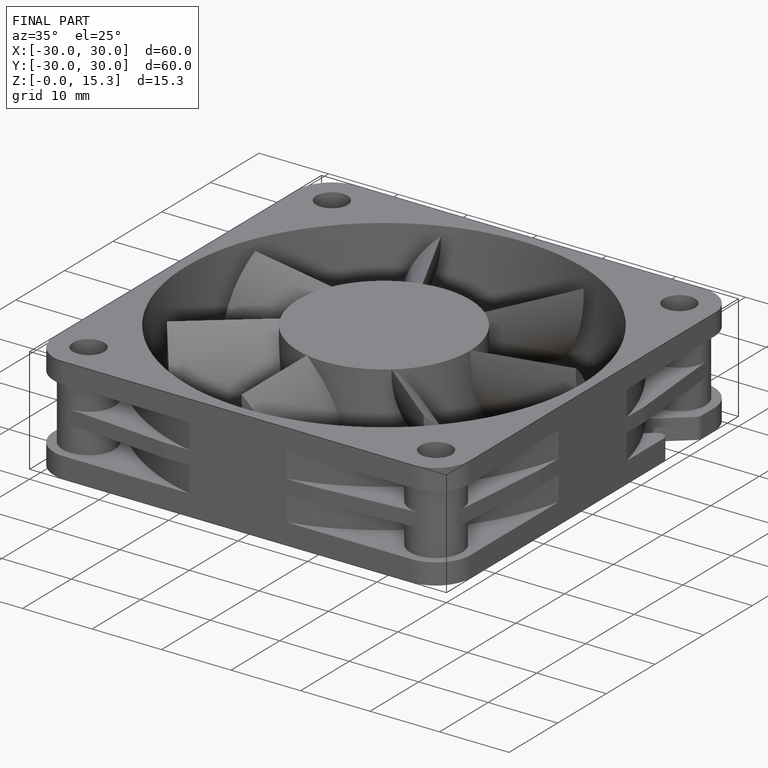
[diagram: finished part — iso view with bounding-box wireframe]
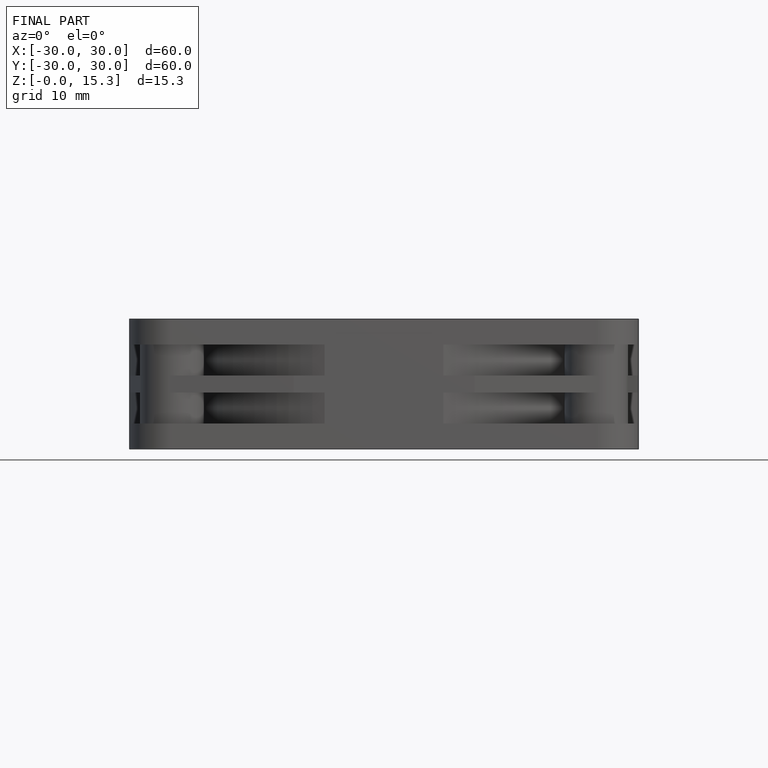
[diagram: finished part — front view with bounding-box wireframe]
